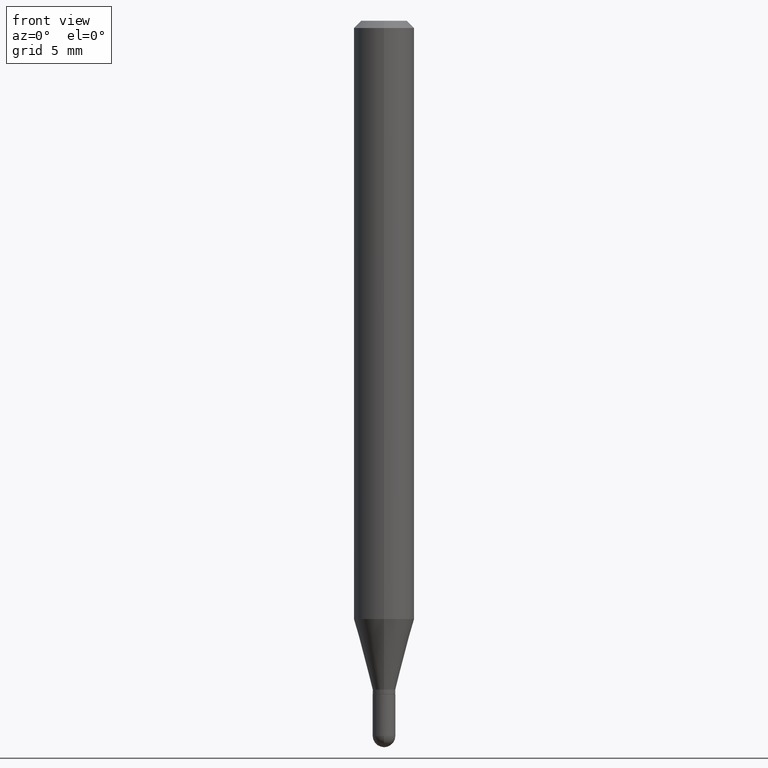
[diagram: clean part render]
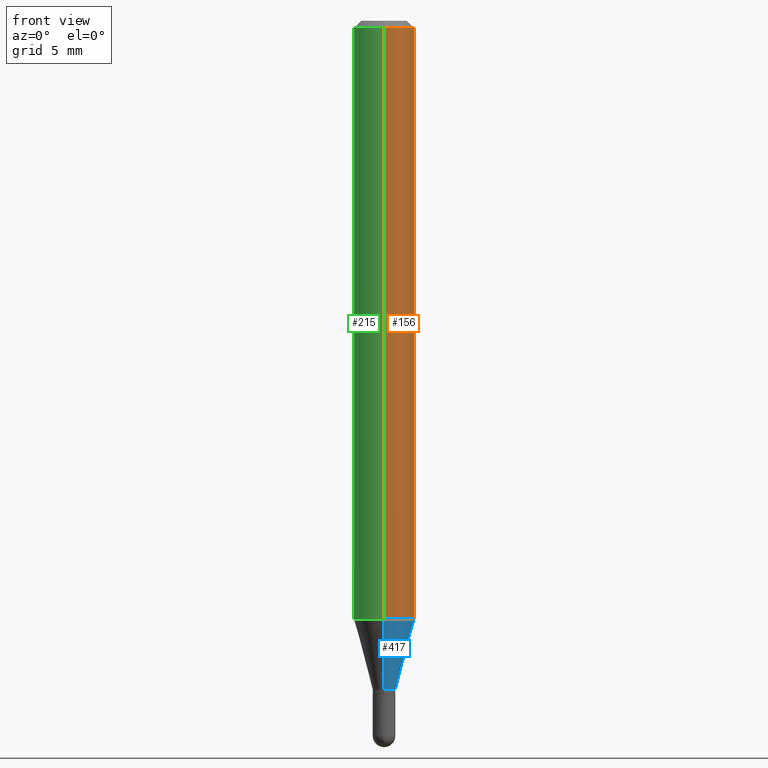
[diagram: same view with three faces highlighted in distinct colors, each labeled with its STEP entity id]
A machine part, front view with three faces highlighted in distinct colors.
Their STEP definitions:

[orange] entity #156 — the highlighted cylindrical surface (edge-blend (fillet) strip) has radius 1.5875 mm, axis along (-0, 0, 1).
#10 = DIRECTION ( 'NONE',  ( -2.445362566006528973E-29, 3.491633480825727200E-15, 1.000000000000000000 ) ) ;
#15 = ORIENTED_EDGE ( 'NONE', *, *, #275, .T. ) ;
#19 = EDGE_CURVE ( 'NONE', #407, #251, #450, .T. ) ;
#40 = AXIS2_PLACEMENT_3D ( 'NONE', #63, #66, #264 ) ;
#47 = CARTESIAN_POINT ( 'NONE',  ( 0.000000000000000000, 0.000000000000000000, 0.000000000000000000 ) ) ;
#63 = CARTESIAN_POINT ( 'NONE',  ( 3.020666916556785536E-29, -4.313087100820585509E-15, -1.235263415964436895 ) ) ;
#66 = DIRECTION ( 'NONE',  ( -2.445362566006528973E-29, 3.491633480825727200E-15, 1.000000000000000000 ) ) ;
#74 = CARTESIAN_POINT ( 'NONE',  ( 4.440892098500924943E-16, 0.06249999999999566319, -1.235263415964437339 ) ) ;
#82 = LINE ( 'NONE', #473, #486 ) ;
#85 = DIRECTION ( 'NONE',  ( -2.445362566006528973E-29, 3.491633480825727200E-15, 1.000000000000000000 ) ) ;
#108 = AXIS2_PLACEMENT_3D ( 'NONE', #235, #199, #388 ) ;
#121 = EDGE_CURVE ( 'NONE', #441, #379, #82, .T. ) ;
#135 = CYLINDRICAL_SURFACE ( 'NONE', #271, 0.06250000000000001388 ) ;
#143 = CARTESIAN_POINT ( 'NONE',  ( 4.440892098500930859E-16, 0.06249999999999996531, -0.01500000000000057711 ) ) ;
#154 = CARTESIAN_POINT ( 'NONE',  ( -4.364351673553615941E-16, -0.06250000000000432987, -1.235263415964436673 ) ) ;
#156 = ADVANCED_FACE ( 'NONE', ( #368 ), #135, .T. ) ;
#163 = CIRCLE ( 'NONE', #40, 0.06250000000000000000 ) ;
#199 = DIRECTION ( 'NONE',  ( -2.445362566006528973E-29, 3.491633480825727200E-15, 1.000000000000000000 ) ) ;
#235 = CARTESIAN_POINT ( 'NONE',  ( 3.668043849009881216E-31, -5.237450221238716032E-17, -0.01500000000000035853 ) ) ;
#241 = EDGE_LOOP ( 'NONE', ( #15, #477, #262, #502 ) ) ;
#247 = DIRECTION ( 'NONE',  ( -6.982962677686265133E-15, -1.000000000000000000, 3.491633480825726805E-15 ) ) ;
#251 = VERTEX_POINT ( 'NONE', #143 ) ;
#262 = ORIENTED_EDGE ( 'NONE', *, *, #465, .F. ) ;
#264 = DIRECTION ( 'NONE',  ( -6.982962677686265922E-15, -1.000000000000000000, 4.370956789862821150E-15 ) ) ;
#271 = AXIS2_PLACEMENT_3D ( 'NONE', #47, #85, #247 ) ;
#275 = EDGE_CURVE ( 'NONE', #441, #407, #163, .T. ) ;
#355 = CIRCLE ( 'NONE', #108, 0.06250000000000001388 ) ;
#368 = FACE_OUTER_BOUND ( 'NONE', #241, .T. ) ;
#379 = VERTEX_POINT ( 'NONE', #451 ) ;
#388 = DIRECTION ( 'NONE',  ( -6.982962677686265922E-15, -1.000000000000000000, 3.483106191921934765E-15 ) ) ;
#407 = VERTEX_POINT ( 'NONE', #74 ) ;
#441 = VERTEX_POINT ( 'NONE', #154 ) ;
#450 = LINE ( 'NONE', #490, #510 ) ;
#451 = CARTESIAN_POINT ( 'NONE',  ( -4.364351673553913736E-16, -0.06250000000000006939, -0.01500000000000014169 ) ) ;
#465 = EDGE_CURVE ( 'NONE', #379, #251, #355, .T. ) ;
#473 = CARTESIAN_POINT ( 'NONE',  ( -4.364351673553916694E-16, -0.06250000000000001388, 2.182270925516079746E-16 ) ) ;
#477 = ORIENTED_EDGE ( 'NONE', *, *, #19, .T. ) ;
#486 = VECTOR ( 'NONE', #10, 39.37007874015748143 ) ;
#490 = CARTESIAN_POINT ( 'NONE',  ( 4.440892098500626162E-16, 0.06250000000000001388, -2.182270925516079746E-16 ) ) ;
#494 = DIRECTION ( 'NONE',  ( -2.445362566006528973E-29, 3.491633480825727200E-15, 1.000000000000000000 ) ) ;
#502 = ORIENTED_EDGE ( 'NONE', *, *, #121, .F. ) ;
#510 = VECTOR ( 'NONE', #494, 39.37007874015748143 ) ;

[blue] entity #417 — the highlighted conical surface has half-angle 15 deg.
#17 = VECTOR ( 'NONE', #174, 39.37007874015748143 ) ;
#22 = DIRECTION ( 'NONE',  ( -2.445362566006528973E-29, 3.491633480825727200E-15, 1.000000000000000000 ) ) ;
#40 = AXIS2_PLACEMENT_3D ( 'NONE', #63, #66, #264 ) ;
#53 = EDGE_CURVE ( 'NONE', #369, #436, #452, .T. ) ;
#63 = CARTESIAN_POINT ( 'NONE',  ( 3.020666916556785536E-29, -4.313087100820585509E-15, -1.235263415964436895 ) ) ;
#66 = DIRECTION ( 'NONE',  ( -2.445362566006528973E-29, 3.491633480825727200E-15, 1.000000000000000000 ) ) ;
#73 = EDGE_CURVE ( 'NONE', #436, #407, #440, .T. ) ;
#74 = CARTESIAN_POINT ( 'NONE',  ( 4.440892098500924943E-16, 0.06249999999999566319, -1.235263415964437339 ) ) ;
#79 = DIRECTION ( 'NONE',  ( -2.445362566006528973E-29, 3.491633480825727200E-15, 1.000000000000000000 ) ) ;
#86 = AXIS2_PLACEMENT_3D ( 'NONE', #308, #79, #269 ) ;
#96 = EDGE_LOOP ( 'NONE', ( #133, #459, #258, #123 ) ) ;
#109 = CARTESIAN_POINT ( 'NONE',  ( -1.637504747917105586E-16, -0.02345000000000501891, -1.381000000000000449 ) ) ;
#123 = ORIENTED_EDGE ( 'NONE', *, *, #507, .F. ) ;
#133 = ORIENTED_EDGE ( 'NONE', *, *, #53, .T. ) ;
#154 = CARTESIAN_POINT ( 'NONE',  ( -4.364351673553615941E-16, -0.06250000000000432987, -1.235263415964436673 ) ) ;
#163 = CIRCLE ( 'NONE', #40, 0.06250000000000000000 ) ;
#174 = DIRECTION ( 'NONE',  ( 1.839019923739600710E-15, 0.2588190451025250138, 0.9659258262890670910 ) ) ;
#196 = LINE ( 'NONE', #313, #469 ) ;
#228 = DIRECTION ( 'NONE',  ( -6.982962677686265922E-15, -1.000000000000000000, 0.000000000000000000 ) ) ;
#258 = ORIENTED_EDGE ( 'NONE', *, *, #275, .F. ) ;
#264 = DIRECTION ( 'NONE',  ( -6.982962677686265922E-15, -1.000000000000000000, 4.370956789862821150E-15 ) ) ;
#269 = DIRECTION ( 'NONE',  ( -6.982962677686265922E-15, -1.000000000000000000, 0.000000000000000000 ) ) ;
#274 = FACE_OUTER_BOUND ( 'NONE', #96, .T. ) ;
#275 = EDGE_CURVE ( 'NONE', #441, #407, #163, .T. ) ;
#308 = CARTESIAN_POINT ( 'NONE',  ( 3.377045703655016887E-29, -4.821945837020329725E-15, -1.381000000000000449 ) ) ;
#313 = CARTESIAN_POINT ( 'NONE',  ( -1.637504747917105586E-16, -0.02345000000000501891, -1.381000000000000449 ) ) ;
#369 = VERTEX_POINT ( 'NONE', #109 ) ;
#374 = AXIS2_PLACEMENT_3D ( 'NONE', #377, #22, #228 ) ;
#377 = CARTESIAN_POINT ( 'NONE',  ( 3.377045703655016887E-29, -4.821945837020329725E-15, -1.381000000000000449 ) ) ;
#407 = VERTEX_POINT ( 'NONE', #74 ) ;
#417 = ADVANCED_FACE ( 'NONE', ( #274 ), #505, .T. ) ;
#423 = CARTESIAN_POINT ( 'NONE',  ( 3.053557406929357877E-16, 0.02344999999999537385, -1.381000000000000449 ) ) ;
#432 = CARTESIAN_POINT ( 'NONE',  ( 1.666222715357786128E-16, 0.02344999999999537385, -1.381000000000000449 ) ) ;
#436 = VERTEX_POINT ( 'NONE', #423 ) ;
#440 = LINE ( 'NONE', #432, #17 ) ;
#441 = VERTEX_POINT ( 'NONE', #154 ) ;
#452 = CIRCLE ( 'NONE', #374, 0.02345000000000019638 ) ;
#459 = ORIENTED_EDGE ( 'NONE', *, *, #73, .T. ) ;
#461 = DIRECTION ( 'NONE',  ( -1.807323732225330534E-15, -0.2588190451025182415, 0.9659258262890689783 ) ) ;
#469 = VECTOR ( 'NONE', #461, 39.37007874015748143 ) ;
#505 = CONICAL_SURFACE ( 'NONE', #86, 0.02345000000000019638, 0.2617993877991502960 ) ;
#507 = EDGE_CURVE ( 'NONE', #369, #441, #196, .T. ) ;

[green] entity #215 — the highlighted cylindrical surface (edge-blend (fillet) strip) has radius 1.5875 mm, axis along (-0, 0, 1).
#10 = DIRECTION ( 'NONE',  ( -2.445362566006528973E-29, 3.491633480825727200E-15, 1.000000000000000000 ) ) ;
#19 = EDGE_CURVE ( 'NONE', #407, #251, #450, .T. ) ;
#21 = ORIENTED_EDGE ( 'NONE', *, *, #206, .F. ) ;
#27 = AXIS2_PLACEMENT_3D ( 'NONE', #229, #226, #380 ) ;
#49 = AXIS2_PLACEMENT_3D ( 'NONE', #323, #454, #219 ) ;
#74 = CARTESIAN_POINT ( 'NONE',  ( 4.440892098500924943E-16, 0.06249999999999566319, -1.235263415964437339 ) ) ;
#82 = LINE ( 'NONE', #473, #486 ) ;
#104 = FACE_OUTER_BOUND ( 'NONE', #227, .T. ) ;
#121 = EDGE_CURVE ( 'NONE', #441, #379, #82, .T. ) ;
#143 = CARTESIAN_POINT ( 'NONE',  ( 4.440892098500930859E-16, 0.06249999999999996531, -0.01500000000000057711 ) ) ;
#151 = CARTESIAN_POINT ( 'NONE',  ( 3.020666916556785536E-29, -4.313087100820585509E-15, -1.235263415964436895 ) ) ;
#154 = CARTESIAN_POINT ( 'NONE',  ( -4.364351673553615941E-16, -0.06250000000000432987, -1.235263415964436673 ) ) ;
#205 = CIRCLE ( 'NONE', #49, 0.06250000000000001388 ) ;
#206 = EDGE_CURVE ( 'NONE', #251, #379, #205, .T. ) ;
#215 = ADVANCED_FACE ( 'NONE', ( #104 ), #341, .T. ) ;
#219 = DIRECTION ( 'NONE',  ( -6.982962677686265922E-15, -1.000000000000000000, 3.483106191921934765E-15 ) ) ;
#226 = DIRECTION ( 'NONE',  ( -2.445362566006528973E-29, 3.491633480825727200E-15, 1.000000000000000000 ) ) ;
#227 = EDGE_LOOP ( 'NONE', ( #332, #367, #351, #21 ) ) ;
#229 = CARTESIAN_POINT ( 'NONE',  ( 0.000000000000000000, 0.000000000000000000, 0.000000000000000000 ) ) ;
#242 = DIRECTION ( 'NONE',  ( -2.445362566006528973E-29, 3.491633480825727200E-15, 1.000000000000000000 ) ) ;
#251 = VERTEX_POINT ( 'NONE', #143 ) ;
#323 = CARTESIAN_POINT ( 'NONE',  ( 3.668043849009881216E-31, -5.237450221238716032E-17, -0.01500000000000035853 ) ) ;
#332 = ORIENTED_EDGE ( 'NONE', *, *, #19, .F. ) ;
#341 = CYLINDRICAL_SURFACE ( 'NONE', #27, 0.06250000000000001388 ) ;
#351 = ORIENTED_EDGE ( 'NONE', *, *, #121, .T. ) ;
#367 = ORIENTED_EDGE ( 'NONE', *, *, #439, .T. ) ;
#379 = VERTEX_POINT ( 'NONE', #451 ) ;
#380 = DIRECTION ( 'NONE',  ( -6.982962677686265133E-15, -1.000000000000000000, 3.491633480825726805E-15 ) ) ;
#391 = DIRECTION ( 'NONE',  ( -6.982962677686265922E-15, -1.000000000000000000, 4.370956789862821150E-15 ) ) ;
#407 = VERTEX_POINT ( 'NONE', #74 ) ;
#427 = CIRCLE ( 'NONE', #498, 0.06250000000000000000 ) ;
#439 = EDGE_CURVE ( 'NONE', #407, #441, #427, .T. ) ;
#441 = VERTEX_POINT ( 'NONE', #154 ) ;
#450 = LINE ( 'NONE', #490, #510 ) ;
#451 = CARTESIAN_POINT ( 'NONE',  ( -4.364351673553913736E-16, -0.06250000000000006939, -0.01500000000000014169 ) ) ;
#454 = DIRECTION ( 'NONE',  ( -2.445362566006528973E-29, 3.491633480825727200E-15, 1.000000000000000000 ) ) ;
#473 = CARTESIAN_POINT ( 'NONE',  ( -4.364351673553916694E-16, -0.06250000000000001388, 2.182270925516079746E-16 ) ) ;
#486 = VECTOR ( 'NONE', #10, 39.37007874015748143 ) ;
#490 = CARTESIAN_POINT ( 'NONE',  ( 4.440892098500626162E-16, 0.06250000000000001388, -2.182270925516079746E-16 ) ) ;
#494 = DIRECTION ( 'NONE',  ( -2.445362566006528973E-29, 3.491633480825727200E-15, 1.000000000000000000 ) ) ;
#498 = AXIS2_PLACEMENT_3D ( 'NONE', #151, #242, #391 ) ;
#510 = VECTOR ( 'NONE', #494, 39.37007874015748143 ) ;